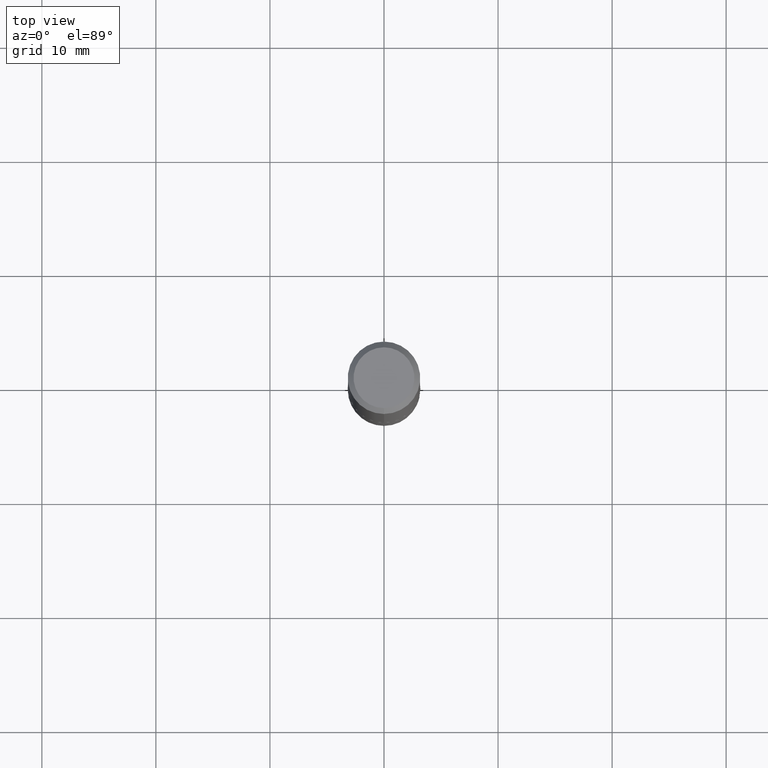
[diagram: clean part render]
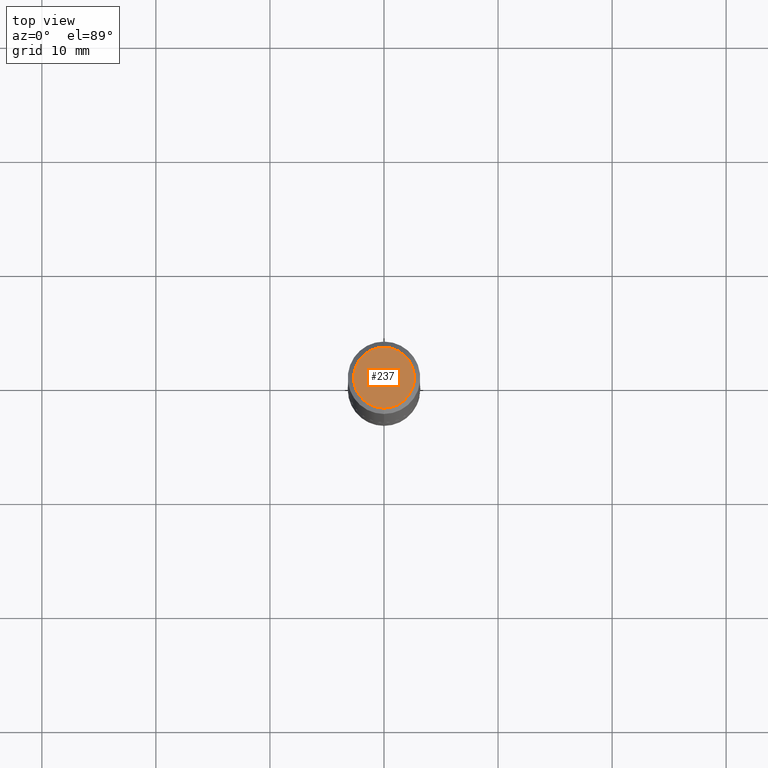
[diagram: same view with one face highlighted and labeled with its STEP entity id]
A machine part, top view. The second image highlights one B-rep face of the part: STEP entity #237.
In plain terms, the highlighted planar face has unit normal (0, -0, -1).
Its self-contained STEP definition (entity closure, byte-faithful):
#29 = CARTESIAN_POINT ( 'NONE',  ( 7.332110811570579257E-16, 0.1049999999999999961, -3.559164163891591830E-16 ) ) ;
#30 = EDGE_LOOP ( 'NONE', ( #165, #140 ) ) ;
#58 = AXIS2_PLACEMENT_3D ( 'NONE', #153, #410, #379 ) ;
#60 = DIRECTION ( 'NONE',  ( -2.445706133332774021E-29, 3.491141472859906642E-15, 1.000000000000000000 ) ) ;
#109 = CIRCLE ( 'NONE', #58, 0.1049999999999999961 ) ;
#112 = CARTESIAN_POINT ( 'NONE',  ( 8.030407079339207309E-16, 0.1049999999999999961, -3.452629781280282099E-16 ) ) ;
#123 = DIRECTION ( 'NONE',  ( 6.982962677686265922E-15, 1.000000000000000000, -3.491141472859906642E-15 ) ) ;
#127 = DIRECTION ( 'NONE',  ( 2.445706133332773460E-29, -3.491141472859906642E-15, -1.000000000000000000 ) ) ;
#140 = ORIENTED_EDGE ( 'NONE', *, *, #172, .T. ) ;
#153 = CARTESIAN_POINT ( 'NONE',  ( -5.211035859266013735E-46, 7.438532028397375271E-32, 2.130687652226194918E-17 ) ) ;
#165 = ORIENTED_EDGE ( 'NONE', *, *, #257, .T. ) ;
#172 = EDGE_CURVE ( 'NONE', #296, #397, #269, .T. ) ;
#237 = ADVANCED_FACE ( 'NONE', ( #380 ), #253, .F. ) ;
#253 = PLANE ( 'NONE',  #304 ) ;
#257 = EDGE_CURVE ( 'NONE', #397, #296, #109, .T. ) ;
#269 = CIRCLE ( 'NONE', #321, 0.1049999999999999961 ) ;
#296 = VERTEX_POINT ( 'NONE', #387 ) ;
#304 = AXIS2_PLACEMENT_3D ( 'NONE', #29, #127, #123 ) ;
#321 = AXIS2_PLACEMENT_3D ( 'NONE', #408, #60, #378 ) ;
#378 = DIRECTION ( 'NONE',  ( -6.982962677686265922E-15, -1.000000000000000000, 3.491141472859906248E-15 ) ) ;
#379 = DIRECTION ( 'NONE',  ( -6.982962677686265922E-15, -1.000000000000000000, 3.491141472859906248E-15 ) ) ;
#380 = FACE_OUTER_BOUND ( 'NONE', #30, .T. ) ;
#387 = CARTESIAN_POINT ( 'NONE',  ( -7.889572697437258181E-16, -0.1049999999999999961, 3.878767311725521021E-16 ) ) ;
#397 = VERTEX_POINT ( 'NONE', #112 ) ;
#408 = CARTESIAN_POINT ( 'NONE',  ( -5.211035859266013735E-46, 7.438532028397375271E-32, 2.130687652226194918E-17 ) ) ;
#410 = DIRECTION ( 'NONE',  ( -2.445706133332774021E-29, 3.491141472859906642E-15, 1.000000000000000000 ) ) ;